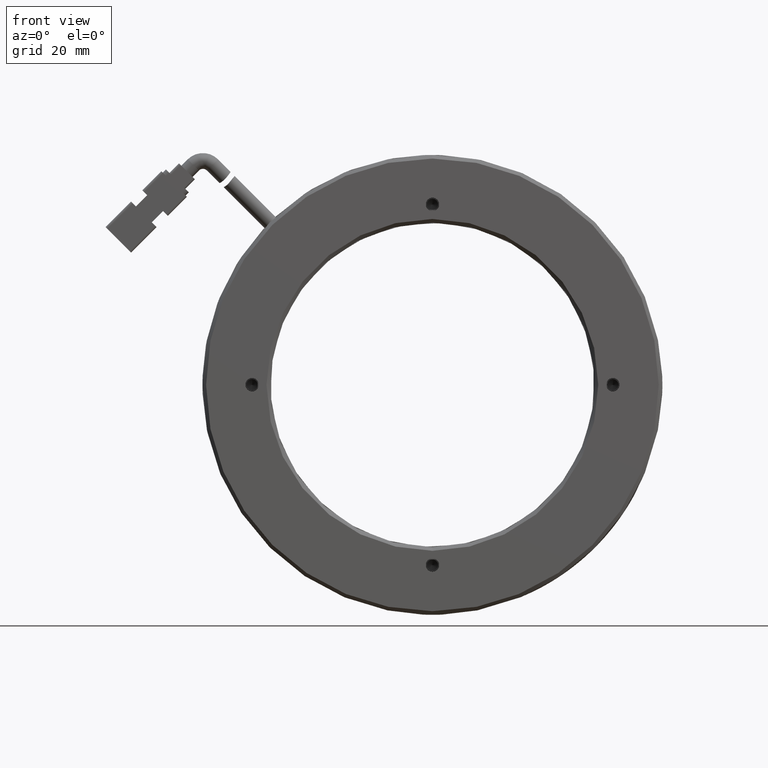
[diagram: clean part render]
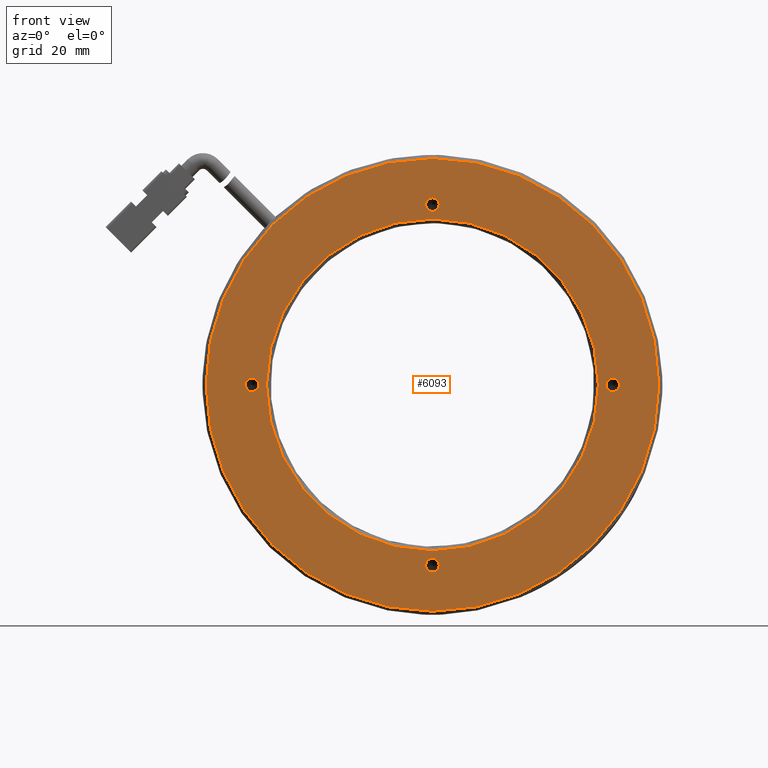
[diagram: same view with one face highlighted and labeled with its STEP entity id]
A machine part, front view. The second image highlights one B-rep face of the part: STEP entity #6093.
In plain terms, the highlighted planar face has unit normal (0, 1, 0).
Its self-contained STEP definition (entity closure, byte-faithful):
#259 = ORIENTED_EDGE ( 'NONE', *, *, #30659, .F. ) ;
#4576 = EDGE_CURVE ( 'NONE', #79687, #23517, #81147, .T. ) ;
#4900 = DIRECTION ( 'NONE',  ( 0.0000000000000000000, -0.0000000000000000000, 1.000000000000000000 ) ) ;
#5573 = DIRECTION ( 'NONE',  ( 0.0000000000000000000, 0.0000000000000000000, -1.000000000000000000 ) ) ;
#6093 = ADVANCED_FACE ( 'NONE', ( #90304, #32482, #51718, #30164, #10718, #85707 ), #77005, .F. ) ;
#6755 = EDGE_LOOP ( 'NONE', ( #69636, #259 ) ) ;
#6875 = AXIS2_PLACEMENT_3D ( 'NONE', #92630, #49182, #5573 ) ;
#7634 = VERTEX_POINT ( 'NONE', #14448 ) ;
#8618 = VERTEX_POINT ( 'NONE', #47577 ) ;
#10139 = CARTESIAN_POINT ( 'NONE',  ( 0.0000000000000000000, 1.407147174518515100, 0.0000000000000000000 ) ) ;
#10718 = FACE_BOUND ( 'NONE', #6755, .T. ) ;
#11741 = AXIS2_PLACEMENT_3D ( 'NONE', #75204, #31840, #82509 ) ;
#11984 = AXIS2_PLACEMENT_3D ( 'NONE', #91964, #48482, #4900 ) ;
#12156 = EDGE_CURVE ( 'NONE', #27567, #39753, #81804, .T. ) ;
#12317 = AXIS2_PLACEMENT_3D ( 'NONE', #66043, #22548, #73324 ) ;
#12526 = CIRCLE ( 'NONE', #61558, 50.19999999999999600 ) ;
#13275 = AXIS2_PLACEMENT_3D ( 'NONE', #28557, #79237, #35899 ) ;
#13531 = ORIENTED_EDGE ( 'NONE', *, *, #47941, .F. ) ;
#14188 = EDGE_CURVE ( 'NONE', #20448, #47140, #55444, .T. ) ;
#14258 = AXIS2_PLACEMENT_3D ( 'NONE', #85652, #42268, #93009 ) ;
#14448 = CARTESIAN_POINT ( 'NONE',  ( 0.0000000000000000000, 1.407147174518513800, -36.80000000000006100 ) ) ;
#14974 = AXIS2_PLACEMENT_3D ( 'NONE', #79478, #36119, #86781 ) ;
#16432 = EDGE_CURVE ( 'NONE', #39753, #27567, #12526, .T. ) ;
#17457 = DIRECTION ( 'NONE',  ( 0.0000000000000000000, 0.0000000000000000000, 1.000000000000000000 ) ) ;
#18280 = DIRECTION ( 'NONE',  ( -0.0000000000000000000, -1.000000000000000000, -0.0000000000000000000 ) ) ;
#20448 = VERTEX_POINT ( 'NONE', #77965 ) ;
#22228 = AXIS2_PLACEMENT_3D ( 'NONE', #25308, #76035, #32680 ) ;
#22548 = DIRECTION ( 'NONE',  ( 0.0000000000000000000, -1.000000000000000000, 0.0000000000000000000 ) ) ;
#22738 = CIRCLE ( 'NONE', #6875, 36.80000000000006100 ) ;
#23517 = VERTEX_POINT ( 'NONE', #71268 ) ;
#25308 = CARTESIAN_POINT ( 'NONE',  ( -2.793185071074506700E-013, 1.407147174518389400, 40.00000000000000000 ) ) ;
#25614 = ORIENTED_EDGE ( 'NONE', *, *, #87206, .F. ) ;
#27567 = VERTEX_POINT ( 'NONE', #48905 ) ;
#27725 = EDGE_LOOP ( 'NONE', ( #25614, #28495 ) ) ;
#27966 = CIRCLE ( 'NONE', #33247, 1.500000000000029100 ) ;
#28495 = ORIENTED_EDGE ( 'NONE', *, *, #14188, .F. ) ;
#28557 = CARTESIAN_POINT ( 'NONE',  ( 0.0000000000000000000, 1.407147174518515100, 0.0000000000000000000 ) ) ;
#30164 = FACE_BOUND ( 'NONE', #43100, .T. ) ;
#30285 = EDGE_CURVE ( 'NONE', #7634, #77118, #78506, .T. ) ;
#30659 = EDGE_CURVE ( 'NONE', #77118, #7634, #22738, .T. ) ;
#31840 = DIRECTION ( 'NONE',  ( -0.0000000000000000000, -1.000000000000000000, -0.0000000000000000000 ) ) ;
#32482 = FACE_BOUND ( 'NONE', #93946, .T. ) ;
#32680 = DIRECTION ( 'NONE',  ( 0.0000000000000000000, 0.0000000000000000000, -1.000000000000000000 ) ) ;
#33247 = AXIS2_PLACEMENT_3D ( 'NONE', #40642, #91361, #47902 ) ;
#34758 = AXIS2_PLACEMENT_3D ( 'NONE', #40486, #91212, #47753 ) ;
#35899 = DIRECTION ( 'NONE',  ( 0.0000000000000000000, 0.0000000000000000000, 1.000000000000000000 ) ) ;
#36119 = DIRECTION ( 'NONE',  ( -0.0000000000000000000, -1.000000000000000000, -0.0000000000000000000 ) ) ;
#36642 = CARTESIAN_POINT ( 'NONE',  ( 0.0000000000000000000, 1.407147174518389400, -41.50000000000002800 ) ) ;
#38974 = CARTESIAN_POINT ( 'NONE',  ( -2.791348100875785800E-013, 1.407147174518389400, 41.50000000000002800 ) ) ;
#39753 = VERTEX_POINT ( 'NONE', #83855 ) ;
#40172 = DIRECTION ( 'NONE',  ( -0.0000000000000000000, -1.000000000000000000, -0.0000000000000000000 ) ) ;
#40486 = CARTESIAN_POINT ( 'NONE',  ( -40.00000000000000000, 1.407147174518389400, -4.189777606611760000E-013 ) ) ;
#40642 = CARTESIAN_POINT ( 'NONE',  ( 0.0000000000000000000, 1.407147174518389400, -40.00000000000000000 ) ) ;
#40759 = VERTEX_POINT ( 'NONE', #49044 ) ;
#41297 = ORIENTED_EDGE ( 'NONE', *, *, #4576, .F. ) ;
#42268 = DIRECTION ( 'NONE',  ( -0.0000000000000000000, -1.000000000000000000, -0.0000000000000000000 ) ) ;
#43100 = EDGE_LOOP ( 'NONE', ( #77579, #72611 ) ) ;
#44182 = CIRCLE ( 'NONE', #14258, 1.500000000000029100 ) ;
#45944 = EDGE_LOOP ( 'NONE', ( #67326, #50010 ) ) ;
#47140 = VERTEX_POINT ( 'NONE', #36642 ) ;
#47387 = VERTEX_POINT ( 'NONE', #69849 ) ;
#47577 = CARTESIAN_POINT ( 'NONE',  ( -40.00000000000000000, 1.407147174518389400, -1.500000000000448100 ) ) ;
#47753 = DIRECTION ( 'NONE',  ( 0.0000000000000000000, 0.0000000000000000000, -1.000000000000000000 ) ) ;
#47902 = DIRECTION ( 'NONE',  ( 0.0000000000000000000, 0.0000000000000000000, -1.000000000000000000 ) ) ;
#47941 = EDGE_CURVE ( 'NONE', #93679, #47387, #44182, .T. ) ;
#48482 = DIRECTION ( 'NONE',  ( 0.0000000000000000000, 1.000000000000000000, 0.0000000000000000000 ) ) ;
#48635 = EDGE_CURVE ( 'NONE', #8618, #40759, #73362, .T. ) ;
#48905 = CARTESIAN_POINT ( 'NONE',  ( 0.0000000000000000000, 1.407147174518515100, 50.19999999999999600 ) ) ;
#49044 = CARTESIAN_POINT ( 'NONE',  ( -40.00000000000000000, 1.407147174518389400, 1.499999999999610100 ) ) ;
#49182 = DIRECTION ( 'NONE',  ( 0.0000000000000000000, -1.000000000000000000, 0.0000000000000000000 ) ) ;
#50010 = ORIENTED_EDGE ( 'NONE', *, *, #16432, .F. ) ;
#50485 = ORIENTED_EDGE ( 'NONE', *, *, #61395, .F. ) ;
#51718 = FACE_BOUND ( 'NONE', #93858, .T. ) ;
#52108 = AXIS2_PLACEMENT_3D ( 'NONE', #61790, #18280, #69102 ) ;
#55444 = CIRCLE ( 'NONE', #52108, 1.500000000000029100 ) ;
#60981 = DIRECTION ( 'NONE',  ( 0.0000000000000000000, 1.000000000000000000, 0.0000000000000000000 ) ) ;
#61395 = EDGE_CURVE ( 'NONE', #23517, #79687, #84165, .T. ) ;
#61558 = AXIS2_PLACEMENT_3D ( 'NONE', #10139, #60981, #17457 ) ;
#61693 = CIRCLE ( 'NONE', #11741, 1.500000000000029100 ) ;
#61790 = CARTESIAN_POINT ( 'NONE',  ( 0.0000000000000000000, 1.407147174518389400, -40.00000000000000000 ) ) ;
#66043 = CARTESIAN_POINT ( 'NONE',  ( 0.0000000000000000000, 1.407147174518513800, 0.0000000000000000000 ) ) ;
#67326 = ORIENTED_EDGE ( 'NONE', *, *, #12156, .F. ) ;
#69102 = DIRECTION ( 'NONE',  ( 0.0000000000000000000, 0.0000000000000000000, -1.000000000000000000 ) ) ;
#69369 = CIRCLE ( 'NONE', #34758, 1.500000000000029100 ) ;
#69545 = EDGE_CURVE ( 'NONE', #40759, #8618, #69369, .T. ) ;
#69636 = ORIENTED_EDGE ( 'NONE', *, *, #30285, .F. ) ;
#69849 = CARTESIAN_POINT ( 'NONE',  ( 40.00000000000000000, 1.407147174518389400, -1.499999999999889400 ) ) ;
#71268 = CARTESIAN_POINT ( 'NONE',  ( -2.793185071074506700E-013, 1.407147174518389400, 38.49999999999997200 ) ) ;
#72611 = ORIENTED_EDGE ( 'NONE', *, *, #69545, .F. ) ;
#73324 = DIRECTION ( 'NONE',  ( 0.0000000000000000000, 0.0000000000000000000, -1.000000000000000000 ) ) ;
#73362 = CIRCLE ( 'NONE', #14974, 1.500000000000029100 ) ;
#75204 = CARTESIAN_POINT ( 'NONE',  ( 40.00000000000000000, 1.407147174518389400, 1.396592535537253300E-013 ) ) ;
#76035 = DIRECTION ( 'NONE',  ( -0.0000000000000000000, -1.000000000000000000, -0.0000000000000000000 ) ) ;
#77005 = PLANE ( 'NONE',  #11984 ) ;
#77118 = VERTEX_POINT ( 'NONE', #79670 ) ;
#77579 = ORIENTED_EDGE ( 'NONE', *, *, #48635, .F. ) ;
#77965 = CARTESIAN_POINT ( 'NONE',  ( 1.836970198721065400E-016, 1.407147174518389400, -38.49999999999997200 ) ) ;
#78506 = CIRCLE ( 'NONE', #12317, 36.80000000000006100 ) ;
#79237 = DIRECTION ( 'NONE',  ( 0.0000000000000000000, 1.000000000000000000, 0.0000000000000000000 ) ) ;
#79478 = CARTESIAN_POINT ( 'NONE',  ( -40.00000000000000000, 1.407147174518389400, -4.189777606611760000E-013 ) ) ;
#79670 = CARTESIAN_POINT ( 'NONE',  ( 4.506700220862267200E-015, 1.407147174518513800, 36.80000000000006100 ) ) ;
#79687 = VERTEX_POINT ( 'NONE', #38974 ) ;
#81147 = CIRCLE ( 'NONE', #22228, 1.500000000000029100 ) ;
#81804 = CIRCLE ( 'NONE', #13275, 50.19999999999999600 ) ;
#82509 = DIRECTION ( 'NONE',  ( 0.0000000000000000000, 0.0000000000000000000, -1.000000000000000000 ) ) ;
#83547 = CARTESIAN_POINT ( 'NONE',  ( -2.793185071074506700E-013, 1.407147174518389400, 40.00000000000000000 ) ) ;
#83855 = CARTESIAN_POINT ( 'NONE',  ( 6.196712803685607000E-015, 1.407147174518515100, -50.19999999999999600 ) ) ;
#84165 = CIRCLE ( 'NONE', #89399, 1.500000000000029100 ) ;
#85652 = CARTESIAN_POINT ( 'NONE',  ( 40.00000000000000000, 1.407147174518389400, 1.396592535537253300E-013 ) ) ;
#85707 = FACE_OUTER_BOUND ( 'NONE', #45944, .T. ) ;
#86781 = DIRECTION ( 'NONE',  ( 0.0000000000000000000, 0.0000000000000000000, -1.000000000000000000 ) ) ;
#87206 = EDGE_CURVE ( 'NONE', #47140, #20448, #27966, .T. ) ;
#87599 = CARTESIAN_POINT ( 'NONE',  ( 40.00000000000000000, 1.407147174518389400, 1.500000000000168800 ) ) ;
#89399 = AXIS2_PLACEMENT_3D ( 'NONE', #83547, #40172, #90879 ) ;
#90304 = FACE_BOUND ( 'NONE', #27725, .T. ) ;
#90879 = DIRECTION ( 'NONE',  ( 0.0000000000000000000, 0.0000000000000000000, -1.000000000000000000 ) ) ;
#91212 = DIRECTION ( 'NONE',  ( -0.0000000000000000000, -1.000000000000000000, -0.0000000000000000000 ) ) ;
#91361 = DIRECTION ( 'NONE',  ( -0.0000000000000000000, -1.000000000000000000, -0.0000000000000000000 ) ) ;
#91964 = CARTESIAN_POINT ( 'NONE',  ( -36.00000000000000700, 1.407147174518513300, 0.0000000000000000000 ) ) ;
#91993 = ORIENTED_EDGE ( 'NONE', *, *, #92000, .F. ) ;
#92000 = EDGE_CURVE ( 'NONE', #47387, #93679, #61693, .T. ) ;
#92630 = CARTESIAN_POINT ( 'NONE',  ( 0.0000000000000000000, 1.407147174518513800, 0.0000000000000000000 ) ) ;
#93009 = DIRECTION ( 'NONE',  ( 0.0000000000000000000, 0.0000000000000000000, -1.000000000000000000 ) ) ;
#93679 = VERTEX_POINT ( 'NONE', #87599 ) ;
#93858 = EDGE_LOOP ( 'NONE', ( #50485, #41297 ) ) ;
#93946 = EDGE_LOOP ( 'NONE', ( #91993, #13531 ) ) ;